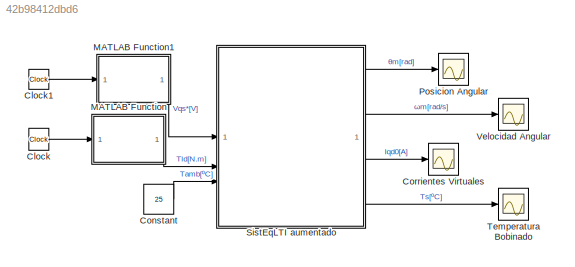
MODEL slx_42b98412dbd6
KIND model
CONFIG AbsTol = auto
CONFIG EnableMultiTasking = off
CONFIG FixedStep = auto
CONFIG MaxStep = 0.0001
CONFIG MinStep = auto
CONFIG RelTol = 1e-3
CONFIG SampleTimeConstraint = Unconstrained
CONFIG SolverName = VariableStepAuto
CONFIG StartTime = 0.0
CONFIG StopTime = 1
BLOCK [Clock] Clock
BLOCK [Clock] Clock1
BLOCK [Constant] Constant
  Value = 25
BLOCK [Scope] Corrientes Virtuales
  Floating = off
  NumInputPorts = 1
  ScopeSpecificationString = Simulink.scopes.TimeScopeBlockCfg('CurrentConfiguration', extmgr.ConfigurationSet(extmgr.Configuration('Core','General UI',true),extmgr.Configuration('Core','Source UI',true),extmgr.Configuration('Sources','WiredSimulink',true),extmgr.Configuration('Visuals','Time Domain',true,'SerializedDisplays',{struct('MinYLimReal','-0.10197','MaxYLimReal','0.53782','YLabelReal','','MinYLimMag','0.00000','MaxY...<+1439ch>
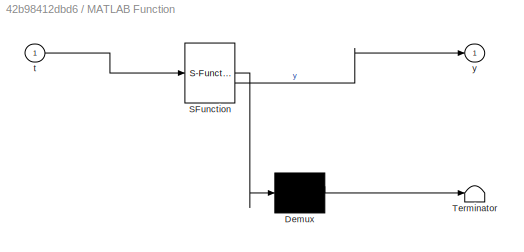
BLOCK [SubSystem] MATLAB Function
  ErrorFcn = Stateflow.Translate.translate
  PermitHierarchicalResolution = ExplicitOnly
  SFBlockType = MATLAB Function
  TreatAsAtomicUnit = on
BLOCK [Demux] MATLAB Function/ Demux 
  Outputs = 1
BLOCK [S-Function] MATLAB Function/ SFunction 
  EnableBusSupport = on
  FunctionName = sf_sfun
  PortCounts = [1 2]
  SFcnIsStateOwnerBlock = off
  SFunctionDeploymentMode = off
  Tag = Stateflow S-Function 2
BLOCK [Terminator] MATLAB Function/ Terminator 
BLOCK [Inport] MATLAB Function/t
BLOCK [Outport] MATLAB Function/y
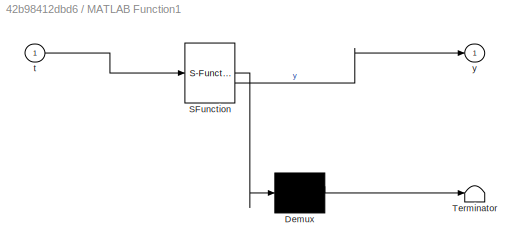
BLOCK [SubSystem] MATLAB Function1
  ErrorFcn = Stateflow.Translate.translate
  PermitHierarchicalResolution = ExplicitOnly
  SFBlockType = MATLAB Function
  TreatAsAtomicUnit = on
BLOCK [Demux] MATLAB Function1/ Demux 
  Outputs = 1
BLOCK [S-Function] MATLAB Function1/ SFunction 
  EnableBusSupport = on
  FunctionName = sf_sfun
  PortCounts = [1 2]
  SFcnIsStateOwnerBlock = off
  SFunctionDeploymentMode = off
  Tag = Stateflow S-Function 1
BLOCK [Terminator] MATLAB Function1/ Terminator 
BLOCK [Inport] MATLAB Function1/t
BLOCK [Outport] MATLAB Function1/y
BLOCK [Scope] Posicion Angular
  Floating = off
  NumInputPorts = 1
  ScopeSpecificationString = Simulink.scopes.TimeScopeBlockCfg('CurrentConfiguration', extmgr.ConfigurationSet(extmgr.Configuration('Core','General UI',true),extmgr.Configuration('Core','Source UI',true),extmgr.Configuration('Sources','WiredSimulink',true,'DataLoggingVariableName','ScopeData1'),extmgr.Configuration('Visuals','Time Domain',true,'SerializedDisplays',{struct('MinYLimReal','-30.35871','MaxYLimReal','273.22842','Y...<+1376ch>
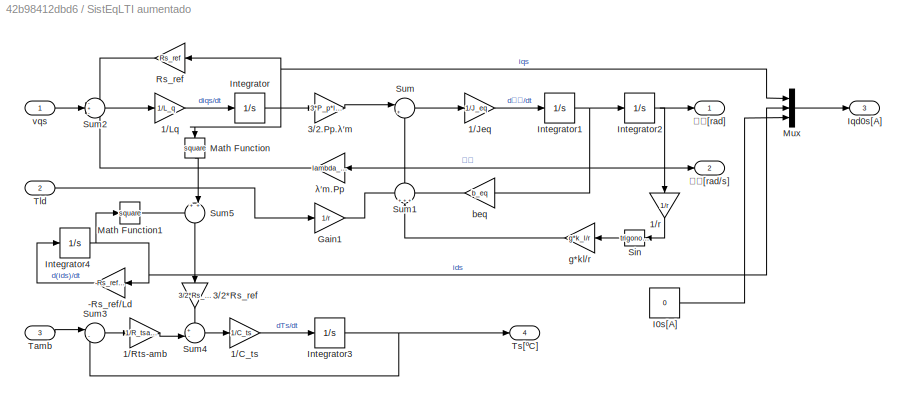
BLOCK [SubSystem] SistEqLTI aumentado
BLOCK [Gain] SistEqLTI aumentado/-Rs_ref//Ld
  Gain = -Rs_ref/L_d
BLOCK [Gain] SistEqLTI aumentado/1//C_ts
  Gain = 1/C_ts
BLOCK [Gain] SistEqLTI aumentado/1//Jeq
  Gain = 1/J_eq
BLOCK [Gain] SistEqLTI aumentado/1//Lq
  Gain = 1/L_q
BLOCK [Gain] SistEqLTI aumentado/1//Rts-amb
  Gain = 1/R_tsamb
BLOCK [Gain] SistEqLTI aumentado/1//r
  Gain = 1/r
  NameLocation = left
BLOCK [Gain] SistEqLTI aumentado/3//2*Rs_ref
  Gain = 3/2*Rs_ref
  NameLocation = right
BLOCK [Gain] SistEqLTI aumentado/3//2.Pp.λ′m
  Gain = 3*P_p*lambda_m/2
BLOCK [Gain] SistEqLTI aumentado/Gain1
  Gain = 1/r
BLOCK [Constant] SistEqLTI aumentado/I0s[A]
  Value = 0
BLOCK [Integrator] SistEqLTI aumentado/Integrator
BLOCK [Integrator] SistEqLTI aumentado/Integrator1
BLOCK [Integrator] SistEqLTI aumentado/Integrator2
BLOCK [Integrator] SistEqLTI aumentado/Integrator3
BLOCK [Integrator] SistEqLTI aumentado/Integrator4
  InitialCondition = I_d0
BLOCK [Outport] SistEqLTI aumentado/Iqd0s[A]
  Port = 3
BLOCK [Math] SistEqLTI aumentado/Math Function
  NameLocation = left
  Operator = square
BLOCK [Math] SistEqLTI aumentado/Math Function1
  Operator = square
BLOCK [Mux] SistEqLTI aumentado/Mux
  DisplayOption = bar
  Inputs = 3
BLOCK [Gain] SistEqLTI aumentado/Rs_ref
  Gain = Rs_ref
BLOCK [Trigonometry] SistEqLTI aumentado/Sin
BLOCK [Sum] SistEqLTI aumentado/Sum
  Inputs = |+-
BLOCK [Sum] SistEqLTI aumentado/Sum1
  Inputs = +++
  NameLocation = right
BLOCK [Sum] SistEqLTI aumentado/Sum2
  Inputs = -+-
BLOCK [Sum] SistEqLTI aumentado/Sum3
  Inputs = |-+
BLOCK [Sum] SistEqLTI aumentado/Sum4
  Inputs = +-|
BLOCK [Sum] SistEqLTI aumentado/Sum5
  Inputs = ++|
  NameLocation = left
BLOCK [Inport] SistEqLTI aumentado/Tamb
  Port = 3
BLOCK [Inport] SistEqLTI aumentado/Tld
  Port = 2
BLOCK [Outport] SistEqLTI aumentado/Ts[ºC]
  Port = 4
BLOCK [Gain] SistEqLTI aumentado/beq
  Gain = b_eq
BLOCK [Gain] SistEqLTI aumentado/g*kl//r
  Gain = g*k_l/r
BLOCK [Inport] SistEqLTI aumentado/vqs
BLOCK [Gain] SistEqLTI aumentado/λ′m.Pp
  Gain = lambda_m*P_p
BLOCK [Outport] SistEqLTI aumentado/𝜃𝑚[rad]
BLOCK [Outport] SistEqLTI aumentado/𝜔𝑚[rad//s]
  Port = 2
BLOCK [Scope] Temperatura Bobinado
  Floating = off
  NumInputPorts = 1
  ScopeSpecificationString = Simulink.scopes.TimeScopeBlockCfg('CurrentConfiguration', extmgr.ConfigurationSet(extmgr.Configuration('Core','General UI',true),extmgr.Configuration('Core','Source UI',true),extmgr.Configuration('Sources','WiredSimulink',true,'DataLoggingVariableName','ScopeData3'),extmgr.Configuration('Visuals','Time Domain',true),extmgr.Configuration('Tools','Plot Navigation',true),extmgr.Configuration('Tools',...<+40ch>
BLOCK [Scope] Velocidad Angular
  Floating = off
  NumInputPorts = 1
  ScopeSpecificationString = Simulink.scopes.TimeScopeBlockCfg('CurrentConfiguration', extmgr.ConfigurationSet(extmgr.Configuration('Core','General UI',true),extmgr.Configuration('Core','Source UI',true),extmgr.Configuration('Sources','WiredSimulink',true,'DataLoggingVariableName','ScopeData2'),extmgr.Configuration('Visuals','Time Domain',true),extmgr.Configuration('Tools','Plot Navigation',true),extmgr.Configuration('Tools',...<+40ch>
LINE Clock1:1 -> MATLAB Function1:1
LINE Clock:1 -> MATLAB Function:1
LINE Constant:1 -> SistEqLTI aumentado:3
LINE MATLAB Function1:1 -> SistEqLTI aumentado:1
LINE MATLAB Function:1 -> SistEqLTI aumentado:2
LINE SistEqLTI aumentado/-Rs_ref//Ld:1 -> SistEqLTI aumentado/Integrator4:1
LINE SistEqLTI aumentado/1//C_ts:1 -> SistEqLTI aumentado/Integrator3:1
LINE SistEqLTI aumentado/1//Jeq:1 -> SistEqLTI aumentado/Integrator1:1
LINE SistEqLTI aumentado/1//Lq:1 -> SistEqLTI aumentado/Integrator:1
LINE SistEqLTI aumentado/1//Rts-amb:1 -> SistEqLTI aumentado/Sum4:2
LINE SistEqLTI aumentado/1//r:1 -> SistEqLTI aumentado/Sin:1
LINE SistEqLTI aumentado/3//2*Rs_ref:1 -> SistEqLTI aumentado/Sum4:1
LINE SistEqLTI aumentado/3//2.Pp.λ′m:1 -> SistEqLTI aumentado/Sum:1
LINE SistEqLTI aumentado/Gain1:1 -> SistEqLTI aumentado/Sum1:1
LINE SistEqLTI aumentado/I0s[A]:1 -> SistEqLTI aumentado/Mux:3
NET SistEqLTI aumentado/Integrator1:1 -> SistEqLTI aumentado/Integrator2:1, SistEqLTI aumentado/beq:1, SistEqLTI aumentado/λ′m.Pp:1, SistEqLTI aumentado/𝜔𝑚[rad//s]:1
NET SistEqLTI aumentado/Integrator2:1 -> SistEqLTI aumentado/1//r:1, SistEqLTI aumentado/𝜃𝑚[rad]:1
NET SistEqLTI aumentado/Integrator3:1 -> SistEqLTI aumentado/Sum3:2, SistEqLTI aumentado/Ts[ºC]:1
NET SistEqLTI aumentado/Integrator4:1 -> SistEqLTI aumentado/-Rs_ref//Ld:1, SistEqLTI aumentado/Math Function1:1, SistEqLTI aumentado/Mux:2
NET SistEqLTI aumentado/Integrator:1 -> SistEqLTI aumentado/3//2.Pp.λ′m:1, SistEqLTI aumentado/Math Function:1, SistEqLTI aumentado/Mux:1, SistEqLTI aumentado/Rs_ref:1
LINE SistEqLTI aumentado/Math Function1:1 -> SistEqLTI aumentado/Sum5:1
LINE SistEqLTI aumentado/Math Function:1 -> SistEqLTI aumentado/Sum5:2
LINE SistEqLTI aumentado/Mux:1 -> SistEqLTI aumentado/Iqd0s[A]:1
LINE SistEqLTI aumentado/Rs_ref:1 -> SistEqLTI aumentado/Sum2:1
LINE SistEqLTI aumentado/Sin:1 -> SistEqLTI aumentado/g*kl//r:1
LINE SistEqLTI aumentado/Sum1:1 -> SistEqLTI aumentado/Sum:2
LINE SistEqLTI aumentado/Sum2:1 -> SistEqLTI aumentado/1//Lq:1
LINE SistEqLTI aumentado/Sum3:1 -> SistEqLTI aumentado/1//Rts-amb:1
LINE SistEqLTI aumentado/Sum4:1 -> SistEqLTI aumentado/1//C_ts:1
LINE SistEqLTI aumentado/Sum5:1 -> SistEqLTI aumentado/3//2*Rs_ref:1
LINE SistEqLTI aumentado/Sum:1 -> SistEqLTI aumentado/1//Jeq:1
LINE SistEqLTI aumentado/Tamb:1 -> SistEqLTI aumentado/Sum3:1
LINE SistEqLTI aumentado/Tld:1 -> SistEqLTI aumentado/Gain1:1
LINE SistEqLTI aumentado/beq:1 -> SistEqLTI aumentado/Sum1:3
LINE SistEqLTI aumentado/g*kl//r:1 -> SistEqLTI aumentado/Sum1:2
LINE SistEqLTI aumentado/vqs:1 -> SistEqLTI aumentado/Sum2:2
LINE SistEqLTI aumentado/λ′m.Pp:1 -> SistEqLTI aumentado/Sum2:3
LINE SistEqLTI aumentado:1 -> Posicion Angular:1
LINE SistEqLTI aumentado:2 -> Velocidad Angular:1
LINE SistEqLTI aumentado:3 -> Corrientes Virtuales:1
LINE SistEqLTI aumentado:4 -> Temperatura Bobinado:1
note: NET lines group one-source signal fan-out (src -> all destinations, sorted); 1:1 wires keep LINE
CHART MATLAB Function states=1 transitions=1
  STATE_LABEL 'eML_blk_kernel()'
  STATE_LABEL 'SCRIPT:\nfunction y = fcn(t)\n    % Initialize output\n    y = 0;\n    \n    % Generate the square signal based on time conditions\n    if t >= 0.3 && t < 0.5\n        y = 6.28;\n    elseif t >= 0.5 && t < 0.9\n        y = -6.28;\n    else\n        y = 0;\n    end\nend\n'
CHART MATLAB Function1 states=1 transitions=1
  STATE_LABEL 'eML_blk_kernel()'
  STATE_LABEL 'SCRIPT:\nfunction y = fcn(t)\n    % Initialize output\n    y = 0;\n    \n    % Generate the square signal based on time conditions\n    if t >= 0.1 && t < 0.7\n        y = 19.596;\n    else\n        y = 0;\n    end\nend'
CHART  states=0 transitions=0
CHART  states=0 transitions=0
